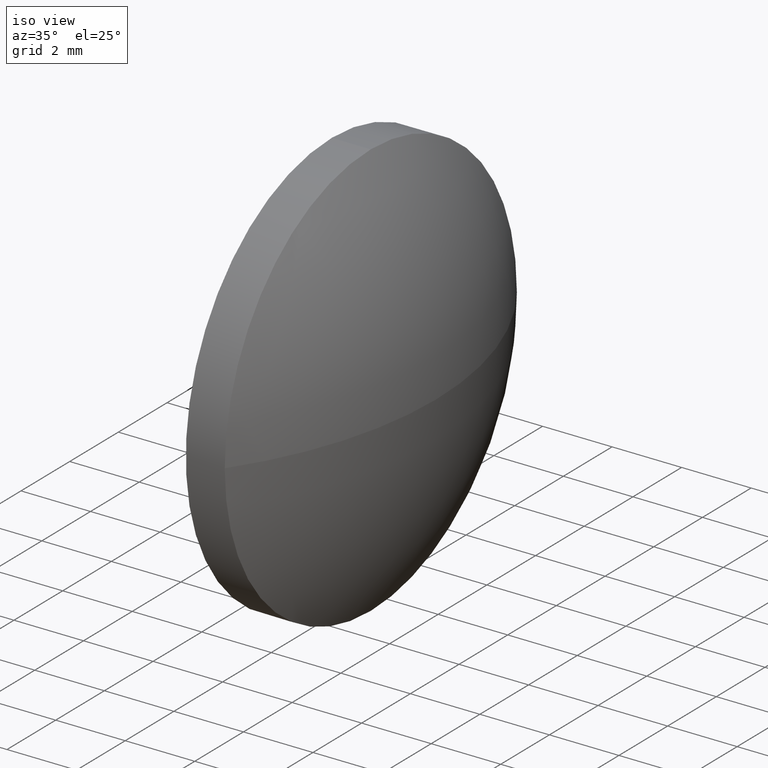
[diagram: clean part render]
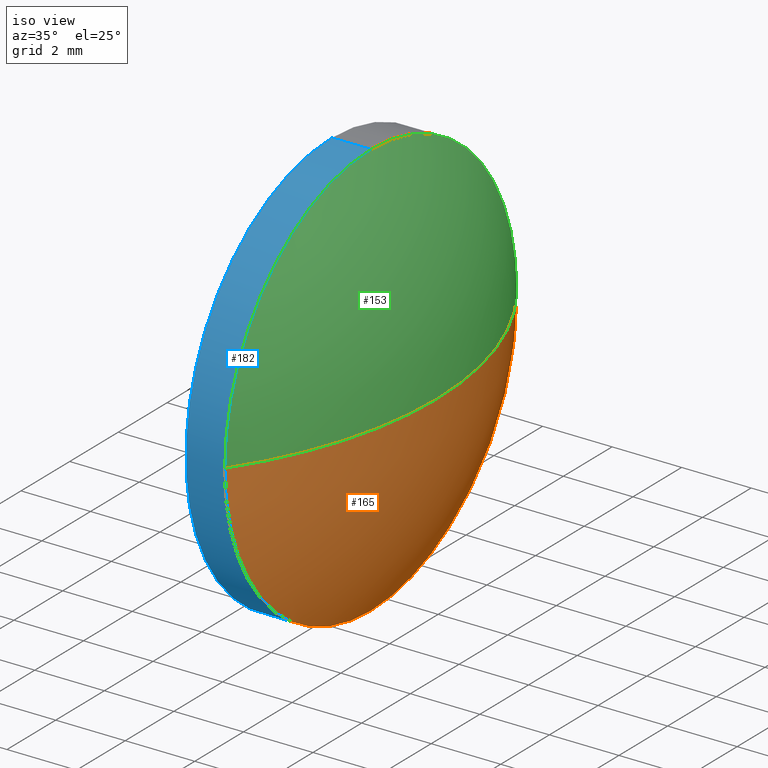
[diagram: same view with three faces highlighted in distinct colors, each labeled with its STEP entity id]
A machine part, iso view with three faces highlighted in distinct colors.
Their STEP definitions:

[orange] entity #165 — the highlighted spherical surface has radius 10.5145 mm.
#4 = CARTESIAN_POINT ( 'NONE',  ( 364.9080584487206800, 4.792432630427242700, 0.0000000000000000000 ) ) ;
#5 = CIRCLE ( 'NONE', #8, 6.000000000000000000 ) ;
#8 = AXIS2_PLACEMENT_3D ( 'NONE', #181, #45, #130 ) ;
#14 = VERTEX_POINT ( 'NONE', #127 ) ;
#18 = EDGE_LOOP ( 'NONE', ( #122, #167, #138, #92 ) ) ;
#21 = EDGE_CURVE ( 'NONE', #50, #124, #53, .T. ) ;
#28 = DIRECTION ( 'NONE',  ( -0.0000000000000000000, 0.0000000000000000000, 1.000000000000000000 ) ) ;
#37 = AXIS2_PLACEMENT_3D ( 'NONE', #155, #64, #65 ) ;
#45 = DIRECTION ( 'NONE',  ( -1.000000000000000000, -0.0000000000000000000, -0.0000000000000000000 ) ) ;
#46 = SPHERICAL_SURFACE ( 'NONE', #129, 10.51446808510642600 ) ;
#50 = VERTEX_POINT ( 'NONE', #179 ) ;
#53 = CIRCLE ( 'NONE', #137, 10.51446808510642100 ) ;
#64 = DIRECTION ( 'NONE',  ( 0.0000000000000000000, 1.224646799147353200E-016, -1.000000000000000000 ) ) ;
#65 = DIRECTION ( 'NONE',  ( 0.0000000000000000000, 1.000000000000000000, 1.224646799147353200E-016 ) ) ;
#71 = DIRECTION ( 'NONE',  ( 0.0000000000000000000, 0.0000000000000000000, 1.000000000000000000 ) ) ;
#80 = CIRCLE ( 'NONE', #37, 10.51446808510642600 ) ;
#82 = VERTEX_POINT ( 'NONE', #162 ) ;
#84 = DIRECTION ( 'NONE',  ( -1.000000000000000000, -0.0000000000000000000, -0.0000000000000000000 ) ) ;
#85 = EDGE_CURVE ( 'NONE', #124, #14, #5, .T. ) ;
#91 = EDGE_CURVE ( 'NONE', #14, #82, #156, .T. ) ;
#92 = ORIENTED_EDGE ( 'NONE', *, *, #85, .F. ) ;
#99 = AXIS2_PLACEMENT_3D ( 'NONE', #4, #84, #71 ) ;
#103 = CARTESIAN_POINT ( 'NONE',  ( 356.2735903636142900, 4.792432630427223100, 0.0000000000000000000 ) ) ;
#113 = CARTESIAN_POINT ( 'NONE',  ( 356.2735903636142900, 4.792432630427223100, 0.0000000000000000000 ) ) ;
#122 = ORIENTED_EDGE ( 'NONE', *, *, #21, .F. ) ;
#124 = VERTEX_POINT ( 'NONE', #146 ) ;
#127 = CARTESIAN_POINT ( 'NONE',  ( 364.9080584487206800, 4.792432630427243500, -6.000000000000000000 ) ) ;
#129 = AXIS2_PLACEMENT_3D ( 'NONE', #103, #152, #172 ) ;
#130 = DIRECTION ( 'NONE',  ( 0.0000000000000000000, 0.0000000000000000000, 1.000000000000000000 ) ) ;
#137 = AXIS2_PLACEMENT_3D ( 'NONE', #113, #28, #148 ) ;
#138 = ORIENTED_EDGE ( 'NONE', *, *, #91, .F. ) ;
#141 = EDGE_CURVE ( 'NONE', #50, #82, #80, .T. ) ;
#146 = CARTESIAN_POINT ( 'NONE',  ( 364.9080584487206800, 10.79243263042723900, 0.0000000000000000000 ) ) ;
#148 = DIRECTION ( 'NONE',  ( 1.000000000000000000, 0.0000000000000000000, 0.0000000000000000000 ) ) ;
#152 = DIRECTION ( 'NONE',  ( -0.0000000000000000000, 0.0000000000000000000, -1.000000000000000000 ) ) ;
#155 = CARTESIAN_POINT ( 'NONE',  ( 356.2735903636142900, 4.792432630427223100, 0.0000000000000000000 ) ) ;
#156 = CIRCLE ( 'NONE', #99, 6.000000000000000000 ) ;
#161 = FACE_OUTER_BOUND ( 'NONE', #18, .T. ) ;
#162 = CARTESIAN_POINT ( 'NONE',  ( 364.9080584487206800, -1.207567369572772700, -7.347880794884114800E-016 ) ) ;
#165 = ADVANCED_FACE ( 'NONE', ( #161 ), #46, .T. ) ;
#167 = ORIENTED_EDGE ( 'NONE', *, *, #141, .T. ) ;
#172 = DIRECTION ( 'NONE',  ( 0.0000000000000000000, 1.000000000000000000, 0.0000000000000000000 ) ) ;
#179 = CARTESIAN_POINT ( 'NONE',  ( 366.7880584487206800, 4.792432630427224000, 0.0000000000000000000 ) ) ;
#181 = CARTESIAN_POINT ( 'NONE',  ( 364.9080584487206800, 4.792432630427242700, 0.0000000000000000000 ) ) ;

[blue] entity #182 — the highlighted cylindrical surface (partial cylindrical patch) has radius 6 mm, axis along (-1, -0, -0).
#4 = CARTESIAN_POINT ( 'NONE',  ( 364.9080584487206800, 4.792432630427242700, 0.0000000000000000000 ) ) ;
#7 = DIRECTION ( 'NONE',  ( -1.000000000000000000, -0.0000000000000000000, -0.0000000000000000000 ) ) ;
#11 = LINE ( 'NONE', #163, #160 ) ;
#12 = CYLINDRICAL_SURFACE ( 'NONE', #25, 6.000000000000000000 ) ;
#14 = VERTEX_POINT ( 'NONE', #127 ) ;
#16 = VERTEX_POINT ( 'NONE', #32 ) ;
#20 = CARTESIAN_POINT ( 'NONE',  ( 361.9267088027018000, 4.792432630427243500, -6.000000000000000000 ) ) ;
#25 = AXIS2_PLACEMENT_3D ( 'NONE', #119, #135, #134 ) ;
#30 = DIRECTION ( 'NONE',  ( 0.0000000000000000000, 0.0000000000000000000, 1.000000000000000000 ) ) ;
#32 = CARTESIAN_POINT ( 'NONE',  ( 363.7880584487206800, 4.792432630427242700, 6.000000000000000000 ) ) ;
#38 = EDGE_CURVE ( 'NONE', #82, #52, #186, .T. ) ;
#49 = ORIENTED_EDGE ( 'NONE', *, *, #98, .F. ) ;
#52 = VERTEX_POINT ( 'NONE', #112 ) ;
#59 = ORIENTED_EDGE ( 'NONE', *, *, #120, .T. ) ;
#61 = CARTESIAN_POINT ( 'NONE',  ( 364.9080584487206800, 4.792432630427242700, 0.0000000000000000000 ) ) ;
#70 = LINE ( 'NONE', #20, #145 ) ;
#71 = DIRECTION ( 'NONE',  ( 0.0000000000000000000, 0.0000000000000000000, 1.000000000000000000 ) ) ;
#72 = DIRECTION ( 'NONE',  ( -1.000000000000000000, -0.0000000000000000000, -0.0000000000000000000 ) ) ;
#78 = CIRCLE ( 'NONE', #88, 6.000000000000000000 ) ;
#79 = ORIENTED_EDGE ( 'NONE', *, *, #91, .T. ) ;
#82 = VERTEX_POINT ( 'NONE', #162 ) ;
#83 = DIRECTION ( 'NONE',  ( 0.0000000000000000000, 0.0000000000000000000, 1.000000000000000000 ) ) ;
#84 = DIRECTION ( 'NONE',  ( -1.000000000000000000, -0.0000000000000000000, -0.0000000000000000000 ) ) ;
#88 = AXIS2_PLACEMENT_3D ( 'NONE', #100, #7, #30 ) ;
#91 = EDGE_CURVE ( 'NONE', #14, #82, #156, .T. ) ;
#98 = EDGE_CURVE ( 'NONE', #131, #16, #78, .T. ) ;
#99 = AXIS2_PLACEMENT_3D ( 'NONE', #4, #84, #71 ) ;
#100 = CARTESIAN_POINT ( 'NONE',  ( 363.7880584487206800, 4.792432630427242700, 0.0000000000000000000 ) ) ;
#109 = ORIENTED_EDGE ( 'NONE', *, *, #114, .F. ) ;
#112 = CARTESIAN_POINT ( 'NONE',  ( 364.9080584487206800, 4.792432630427242700, 6.000000000000000000 ) ) ;
#114 = EDGE_CURVE ( 'NONE', #14, #131, #70, .T. ) ;
#119 = CARTESIAN_POINT ( 'NONE',  ( 361.9267088027018000, 4.792432630427242700, 0.0000000000000000000 ) ) ;
#120 = EDGE_CURVE ( 'NONE', #52, #16, #11, .T. ) ;
#123 = AXIS2_PLACEMENT_3D ( 'NONE', #61, #72, #83 ) ;
#126 = DIRECTION ( 'NONE',  ( -1.000000000000000000, -0.0000000000000000000, -0.0000000000000000000 ) ) ;
#127 = CARTESIAN_POINT ( 'NONE',  ( 364.9080584487206800, 4.792432630427243500, -6.000000000000000000 ) ) ;
#128 = DIRECTION ( 'NONE',  ( -1.000000000000000000, -0.0000000000000000000, -0.0000000000000000000 ) ) ;
#131 = VERTEX_POINT ( 'NONE', #147 ) ;
#134 = DIRECTION ( 'NONE',  ( 0.0000000000000000000, 0.0000000000000000000, 1.000000000000000000 ) ) ;
#135 = DIRECTION ( 'NONE',  ( -1.000000000000000000, -0.0000000000000000000, -0.0000000000000000000 ) ) ;
#145 = VECTOR ( 'NONE', #126, 1000.000000000000000 ) ;
#147 = CARTESIAN_POINT ( 'NONE',  ( 363.7880584487206800, 4.792432630427243500, -6.000000000000000000 ) ) ;
#156 = CIRCLE ( 'NONE', #99, 6.000000000000000000 ) ;
#157 = ORIENTED_EDGE ( 'NONE', *, *, #38, .T. ) ;
#160 = VECTOR ( 'NONE', #128, 1000.000000000000000 ) ;
#162 = CARTESIAN_POINT ( 'NONE',  ( 364.9080584487206800, -1.207567369572772700, -7.347880794884114800E-016 ) ) ;
#163 = CARTESIAN_POINT ( 'NONE',  ( 361.9267088027018000, 4.792432630427242700, 6.000000000000000000 ) ) ;
#173 = EDGE_LOOP ( 'NONE', ( #109, #79, #157, #59, #49 ) ) ;
#178 = FACE_OUTER_BOUND ( 'NONE', #173, .T. ) ;
#182 = ADVANCED_FACE ( 'NONE', ( #178 ), #12, .T. ) ;
#186 = CIRCLE ( 'NONE', #123, 6.000000000000000000 ) ;

[green] entity #153 — the highlighted spherical surface has radius 10.5145 mm.
#2 = EDGE_LOOP ( 'NONE', ( #40, #125, #24, #27 ) ) ;
#10 = EDGE_CURVE ( 'NONE', #52, #124, #39, .T. ) ;
#15 = AXIS2_PLACEMENT_3D ( 'NONE', #115, #170, #36 ) ;
#21 = EDGE_CURVE ( 'NONE', #50, #124, #53, .T. ) ;
#24 = ORIENTED_EDGE ( 'NONE', *, *, #10, .F. ) ;
#27 = ORIENTED_EDGE ( 'NONE', *, *, #38, .F. ) ;
#28 = DIRECTION ( 'NONE',  ( -0.0000000000000000000, 0.0000000000000000000, 1.000000000000000000 ) ) ;
#33 = AXIS2_PLACEMENT_3D ( 'NONE', #47, #180, #44 ) ;
#36 = DIRECTION ( 'NONE',  ( 0.0000000000000000000, 1.000000000000000000, 0.0000000000000000000 ) ) ;
#37 = AXIS2_PLACEMENT_3D ( 'NONE', #155, #64, #65 ) ;
#38 = EDGE_CURVE ( 'NONE', #82, #52, #186, .T. ) ;
#39 = CIRCLE ( 'NONE', #33, 6.000000000000000000 ) ;
#40 = ORIENTED_EDGE ( 'NONE', *, *, #141, .F. ) ;
#44 = DIRECTION ( 'NONE',  ( 0.0000000000000000000, 0.0000000000000000000, 1.000000000000000000 ) ) ;
#47 = CARTESIAN_POINT ( 'NONE',  ( 364.9080584487206800, 4.792432630427242700, 0.0000000000000000000 ) ) ;
#50 = VERTEX_POINT ( 'NONE', #179 ) ;
#52 = VERTEX_POINT ( 'NONE', #112 ) ;
#53 = CIRCLE ( 'NONE', #137, 10.51446808510642100 ) ;
#61 = CARTESIAN_POINT ( 'NONE',  ( 364.9080584487206800, 4.792432630427242700, 0.0000000000000000000 ) ) ;
#64 = DIRECTION ( 'NONE',  ( 0.0000000000000000000, 1.224646799147353200E-016, -1.000000000000000000 ) ) ;
#65 = DIRECTION ( 'NONE',  ( 0.0000000000000000000, 1.000000000000000000, 1.224646799147353200E-016 ) ) ;
#72 = DIRECTION ( 'NONE',  ( -1.000000000000000000, -0.0000000000000000000, -0.0000000000000000000 ) ) ;
#80 = CIRCLE ( 'NONE', #37, 10.51446808510642600 ) ;
#82 = VERTEX_POINT ( 'NONE', #162 ) ;
#83 = DIRECTION ( 'NONE',  ( 0.0000000000000000000, 0.0000000000000000000, 1.000000000000000000 ) ) ;
#112 = CARTESIAN_POINT ( 'NONE',  ( 364.9080584487206800, 4.792432630427242700, 6.000000000000000000 ) ) ;
#113 = CARTESIAN_POINT ( 'NONE',  ( 356.2735903636142900, 4.792432630427223100, 0.0000000000000000000 ) ) ;
#115 = CARTESIAN_POINT ( 'NONE',  ( 356.2735903636142900, 4.792432630427223100, 0.0000000000000000000 ) ) ;
#117 = FACE_OUTER_BOUND ( 'NONE', #2, .T. ) ;
#123 = AXIS2_PLACEMENT_3D ( 'NONE', #61, #72, #83 ) ;
#124 = VERTEX_POINT ( 'NONE', #146 ) ;
#125 = ORIENTED_EDGE ( 'NONE', *, *, #21, .T. ) ;
#137 = AXIS2_PLACEMENT_3D ( 'NONE', #113, #28, #148 ) ;
#141 = EDGE_CURVE ( 'NONE', #50, #82, #80, .T. ) ;
#146 = CARTESIAN_POINT ( 'NONE',  ( 364.9080584487206800, 10.79243263042723900, 0.0000000000000000000 ) ) ;
#148 = DIRECTION ( 'NONE',  ( 1.000000000000000000, 0.0000000000000000000, 0.0000000000000000000 ) ) ;
#153 = ADVANCED_FACE ( 'NONE', ( #117 ), #171, .T. ) ;
#155 = CARTESIAN_POINT ( 'NONE',  ( 356.2735903636142900, 4.792432630427223100, 0.0000000000000000000 ) ) ;
#162 = CARTESIAN_POINT ( 'NONE',  ( 364.9080584487206800, -1.207567369572772700, -7.347880794884114800E-016 ) ) ;
#170 = DIRECTION ( 'NONE',  ( -0.0000000000000000000, 0.0000000000000000000, -1.000000000000000000 ) ) ;
#171 = SPHERICAL_SURFACE ( 'NONE', #15, 10.51446808510642600 ) ;
#179 = CARTESIAN_POINT ( 'NONE',  ( 366.7880584487206800, 4.792432630427224000, 0.0000000000000000000 ) ) ;
#180 = DIRECTION ( 'NONE',  ( -1.000000000000000000, -0.0000000000000000000, -0.0000000000000000000 ) ) ;
#186 = CIRCLE ( 'NONE', #123, 6.000000000000000000 ) ;